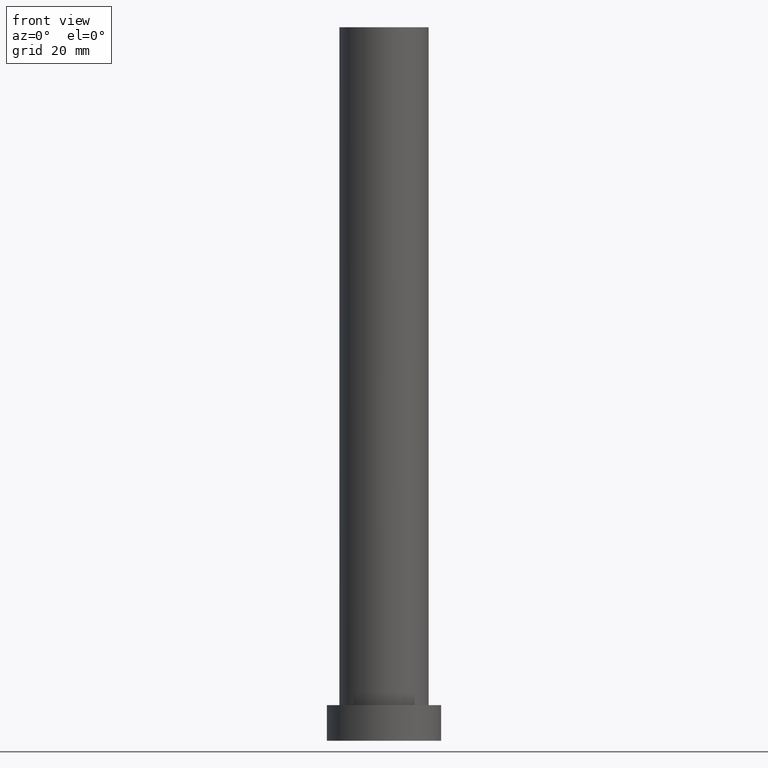
[diagram: clean part render]
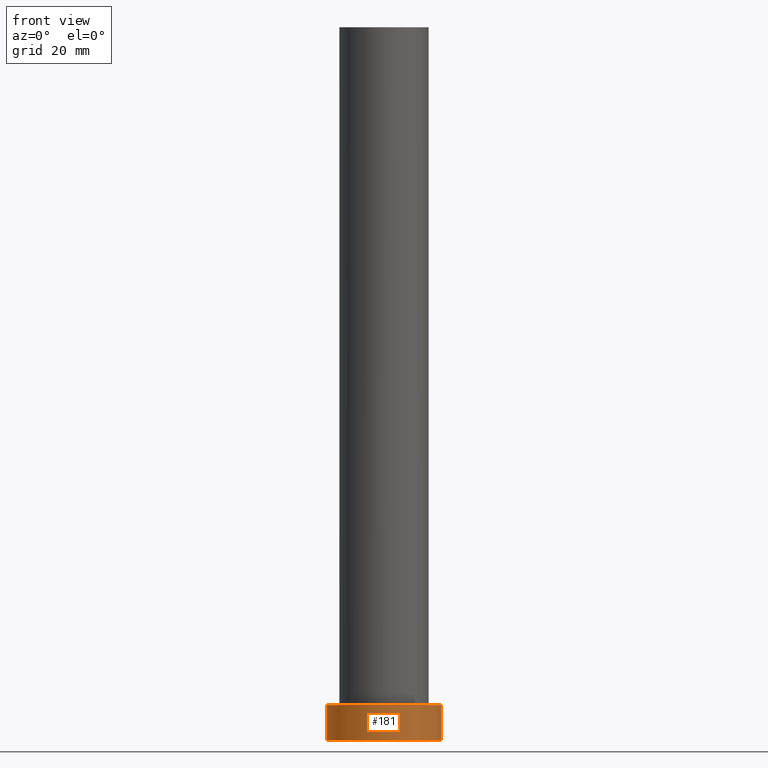
[diagram: same view with one face highlighted and labeled with its STEP entity id]
A machine part, front view. The second image highlights one B-rep face of the part: STEP entity #181.
In plain terms, the highlighted cylindrical surface (partial cylindrical patch) has radius 16 mm, axis along (-0, -0, -1).
Its self-contained STEP definition (entity closure, byte-faithful):
#2 = VECTOR ( 'NONE', #176, 1000.000000000000000 ) ;
#4 = CARTESIAN_POINT ( 'NONE',  ( -16.00000000000000000, 0.000000000000000000, 10.00000000000000000 ) ) ;
#20 = CARTESIAN_POINT ( 'NONE',  ( 16.00000000000000000, 1.959434878635765131E-15, 0.000000000000000000 ) ) ;
#23 = AXIS2_PLACEMENT_3D ( 'NONE', #158, #239, #81 ) ;
#39 = DIRECTION ( 'NONE',  ( -1.000000000000000000, 0.000000000000000000, 0.000000000000000000 ) ) ;
#50 = EDGE_LOOP ( 'NONE', ( #170, #253, #125, #64 ) ) ;
#64 = ORIENTED_EDGE ( 'NONE', *, *, #171, .T. ) ;
#74 = CIRCLE ( 'NONE', #255, 16.00000000000000000 ) ;
#79 = CARTESIAN_POINT ( 'NONE',  ( 0.000000000000000000, 0.000000000000000000, 10.00000000000000000 ) ) ;
#81 = DIRECTION ( 'NONE',  ( 1.000000000000000000, 0.000000000000000000, 0.000000000000000000 ) ) ;
#99 = CARTESIAN_POINT ( 'NONE',  ( 16.00000000000000000, 1.959434878635765131E-15, 10.00000000000000000 ) ) ;
#115 = CYLINDRICAL_SURFACE ( 'NONE', #145, 16.00000000000000000 ) ;
#117 = CARTESIAN_POINT ( 'NONE',  ( 16.00000000000000000, 1.959434878635765131E-15, 10.00000000000000000 ) ) ;
#118 = CARTESIAN_POINT ( 'NONE',  ( 0.000000000000000000, 0.000000000000000000, 10.00000000000000000 ) ) ;
#124 = VECTOR ( 'NONE', #237, 1000.000000000000000 ) ;
#125 = ORIENTED_EDGE ( 'NONE', *, *, #191, .T. ) ;
#138 = CARTESIAN_POINT ( 'NONE',  ( -16.00000000000000000, 0.000000000000000000, 10.00000000000000000 ) ) ;
#139 = LINE ( 'NONE', #4, #124 ) ;
#145 = AXIS2_PLACEMENT_3D ( 'NONE', #79, #179, #39 ) ;
#154 = EDGE_CURVE ( 'NONE', #166, #225, #219, .T. ) ;
#158 = CARTESIAN_POINT ( 'NONE',  ( 0.000000000000000000, 0.000000000000000000, 0.000000000000000000 ) ) ;
#165 = VERTEX_POINT ( 'NONE', #216 ) ;
#166 = VERTEX_POINT ( 'NONE', #99 ) ;
#170 = ORIENTED_EDGE ( 'NONE', *, *, #154, .F. ) ;
#171 = EDGE_CURVE ( 'NONE', #165, #225, #194, .T. ) ;
#176 = DIRECTION ( 'NONE',  ( -0.000000000000000000, -0.000000000000000000, -1.000000000000000000 ) ) ;
#178 = DIRECTION ( 'NONE',  ( 1.000000000000000000, 0.000000000000000000, 0.000000000000000000 ) ) ;
#179 = DIRECTION ( 'NONE',  ( -0.000000000000000000, -0.000000000000000000, -1.000000000000000000 ) ) ;
#181 = ADVANCED_FACE ( 'NONE', ( #240 ), #115, .T. ) ;
#191 = EDGE_CURVE ( 'NONE', #231, #165, #139, .T. ) ;
#194 = CIRCLE ( 'NONE', #23, 16.00000000000000000 ) ;
#195 = DIRECTION ( 'NONE',  ( 0.000000000000000000, 0.000000000000000000, 1.000000000000000000 ) ) ;
#216 = CARTESIAN_POINT ( 'NONE',  ( -16.00000000000000000, 0.000000000000000000, 0.000000000000000000 ) ) ;
#217 = EDGE_CURVE ( 'NONE', #231, #166, #74, .T. ) ;
#219 = LINE ( 'NONE', #117, #2 ) ;
#225 = VERTEX_POINT ( 'NONE', #20 ) ;
#231 = VERTEX_POINT ( 'NONE', #138 ) ;
#237 = DIRECTION ( 'NONE',  ( -0.000000000000000000, -0.000000000000000000, -1.000000000000000000 ) ) ;
#239 = DIRECTION ( 'NONE',  ( 0.000000000000000000, 0.000000000000000000, 1.000000000000000000 ) ) ;
#240 = FACE_OUTER_BOUND ( 'NONE', #50, .T. ) ;
#253 = ORIENTED_EDGE ( 'NONE', *, *, #217, .F. ) ;
#255 = AXIS2_PLACEMENT_3D ( 'NONE', #118, #195, #178 ) ;